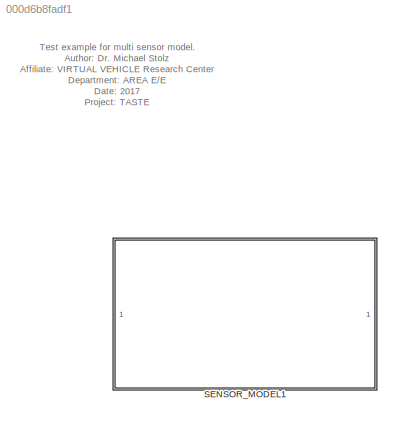
MODEL slx_000d6b8fadf1
KIND library
CONFIG AbsTol = auto
CONFIG FixedStep = auto
CONFIG MaxStep = auto
CONFIG MinStep = auto
CONFIG RelTol = 1e-3
CONFIG SampleTimeConstraint = Unconstrained
CONFIG Solver = ode45
CONFIG SolverMode = Auto
CONFIG SolverName = ode45
CONFIG StartTime = 0.0
CONFIG StopTime = 10.0
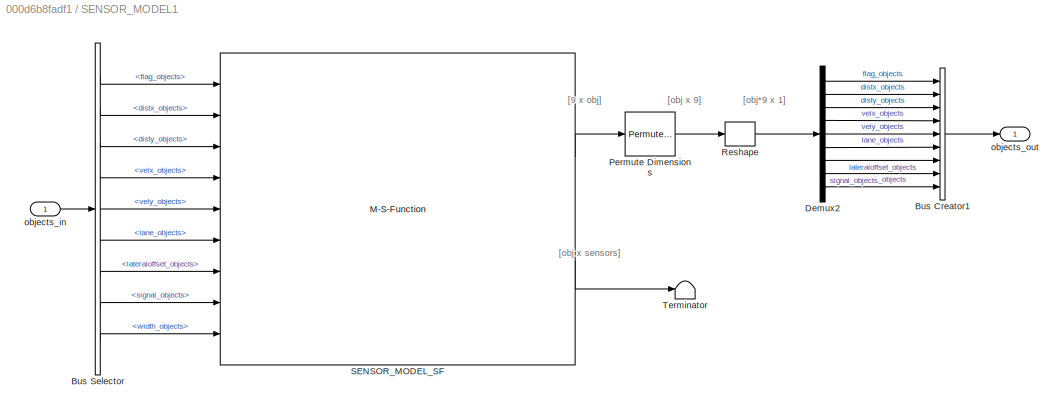
BLOCK [SubSystem] SENSOR_MODEL1
  Ports = [1, 1]
  RequestExecContextInheritance = off
  Variant = off
BLOCK [BusCreator] SENSOR_MODEL1/Bus Creator1
  DisplayOption = bar
  InheritFromInputs = on
  Inputs = 9
  Ports = [9, 1]
BLOCK [BusSelector] SENSOR_MODEL1/Bus Selector
  OutputSignals = flag_objects,distx_objects,disty_objects,velx_objects,vely_objects,lane_objects,lateraloffset_objects,signal_objects,width_objects
  Ports = [1, 9]
BLOCK [Demux] SENSOR_MODEL1/Demux2
  DisplayOption = bar
  Outputs = [-1,-1,-1,-1,-1,-1,-1,-1,-1]
  Ports = [1, 9]
BLOCK [PermuteDimensions] SENSOR_MODEL1/Permute Dimensions
BLOCK [Reshape] SENSOR_MODEL1/Reshape
  Ports = [1, 1]
BLOCK [M-S-Function] SENSOR_MODEL1/SENSOR_MODEL_SF
  FunctionName = sf2SENSOR_MODELS
  Parameters = NumObjects,MountX,MountY,MountA,SensorModel,SensorRange,SensorXY,SensorVisibility,SensorSegmentation,SensorMinVis,SensorType,SensorAngle
  Ports = [9, 2]
BLOCK [Terminator] SENSOR_MODEL1/Terminator
BLOCK [Inport] SENSOR_MODEL1/objects_in
  IconDisplay = Port number
BLOCK [Outport] SENSOR_MODEL1/objects_out
  IconDisplay = Port number
ANNOTATION (root): Test example for multi sensor model. Author: Dr. Michael Stolz Affiliate: VIRTUAL VEHICLE Research Center Department: AREA E/E Date: 2017 Project: TASTE To use as is, no warranty. Confidential to TASTE partners.
ANNOTATION SENSOR_MODEL1: [9 x obj]
ANNOTATION SENSOR_MODEL1: [obj x 9]
ANNOTATION SENSOR_MODEL1: [obj x sensors]
ANNOTATION SENSOR_MODEL1: [obj*9 x 1]
LINE SENSOR_MODEL1/Bus Creator1:1 -> SENSOR_MODEL1/objects_out:1
LINE SENSOR_MODEL1/Bus Selector:1 -> SENSOR_MODEL1/SENSOR_MODEL_SF:1
LINE SENSOR_MODEL1/Bus Selector:2 -> SENSOR_MODEL1/SENSOR_MODEL_SF:2
LINE SENSOR_MODEL1/Bus Selector:3 -> SENSOR_MODEL1/SENSOR_MODEL_SF:3
LINE SENSOR_MODEL1/Bus Selector:4 -> SENSOR_MODEL1/SENSOR_MODEL_SF:4
LINE SENSOR_MODEL1/Bus Selector:5 -> SENSOR_MODEL1/SENSOR_MODEL_SF:5
LINE SENSOR_MODEL1/Bus Selector:6 -> SENSOR_MODEL1/SENSOR_MODEL_SF:6
LINE SENSOR_MODEL1/Bus Selector:7 -> SENSOR_MODEL1/SENSOR_MODEL_SF:7
LINE SENSOR_MODEL1/Bus Selector:8 -> SENSOR_MODEL1/SENSOR_MODEL_SF:8
LINE SENSOR_MODEL1/Bus Selector:9 -> SENSOR_MODEL1/SENSOR_MODEL_SF:9
LINE SENSOR_MODEL1/Demux2:1 -> SENSOR_MODEL1/Bus Creator1:1
LINE SENSOR_MODEL1/Demux2:2 -> SENSOR_MODEL1/Bus Creator1:2
LINE SENSOR_MODEL1/Demux2:3 -> SENSOR_MODEL1/Bus Creator1:3
LINE SENSOR_MODEL1/Demux2:4 -> SENSOR_MODEL1/Bus Creator1:4
LINE SENSOR_MODEL1/Demux2:5 -> SENSOR_MODEL1/Bus Creator1:5
LINE SENSOR_MODEL1/Demux2:6 -> SENSOR_MODEL1/Bus Creator1:6
LINE SENSOR_MODEL1/Demux2:7 -> SENSOR_MODEL1/Bus Creator1:7
LINE SENSOR_MODEL1/Demux2:8 -> SENSOR_MODEL1/Bus Creator1:8
LINE SENSOR_MODEL1/Demux2:9 -> SENSOR_MODEL1/Bus Creator1:9
LINE SENSOR_MODEL1/Permute Dimensions:1 -> SENSOR_MODEL1/Reshape:1
LINE SENSOR_MODEL1/Reshape:1 -> SENSOR_MODEL1/Demux2:1
LINE SENSOR_MODEL1/SENSOR_MODEL_SF:1 -> SENSOR_MODEL1/Permute Dimensions:1
LINE SENSOR_MODEL1/SENSOR_MODEL_SF:2 -> SENSOR_MODEL1/Terminator:1
LINE SENSOR_MODEL1/objects_in:1 -> SENSOR_MODEL1/Bus Selector:1
